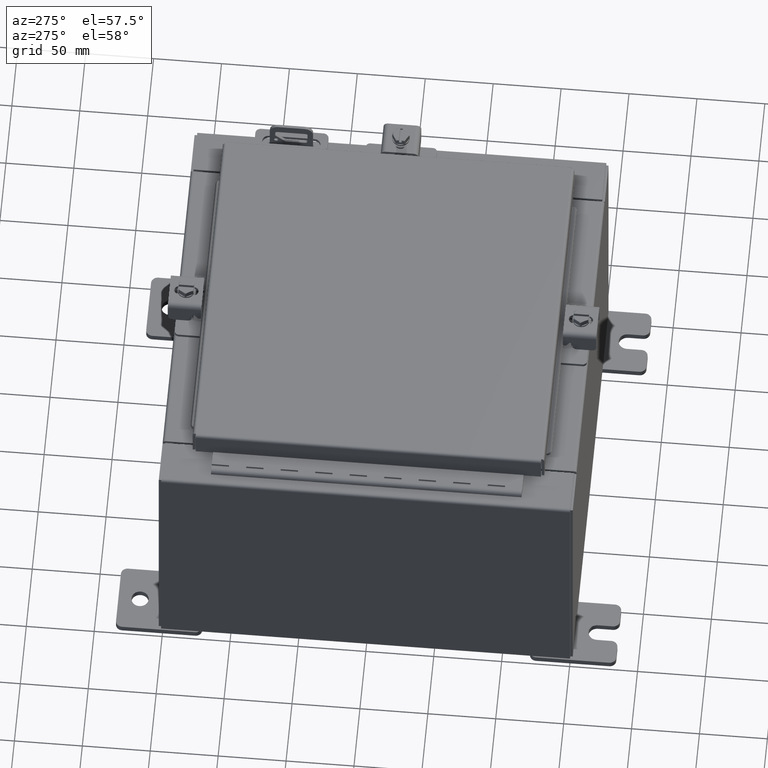
[diagram: clean part render]
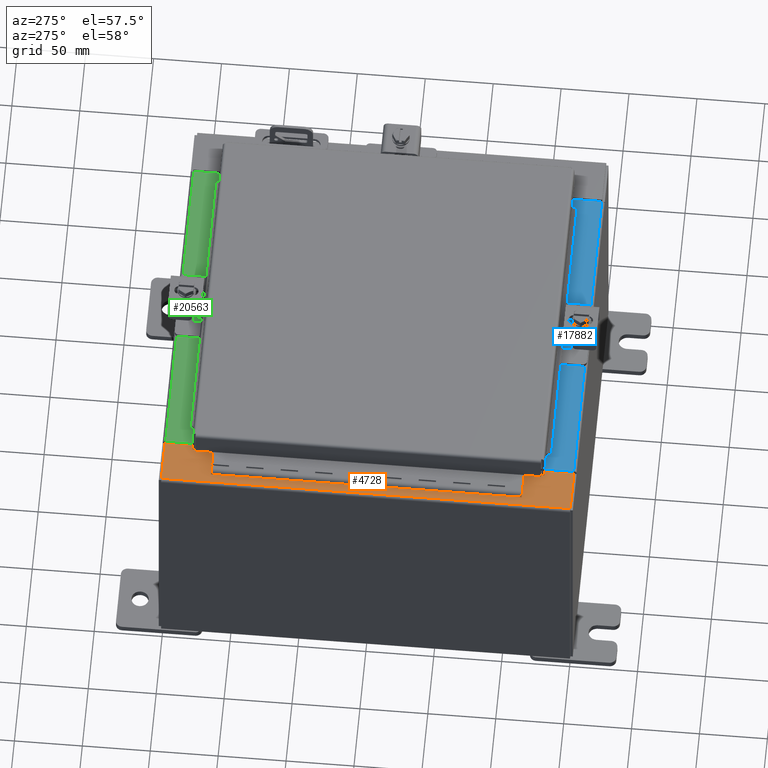
[diagram: same view with three faces highlighted in distinct colors, each labeled with its STEP entity id]
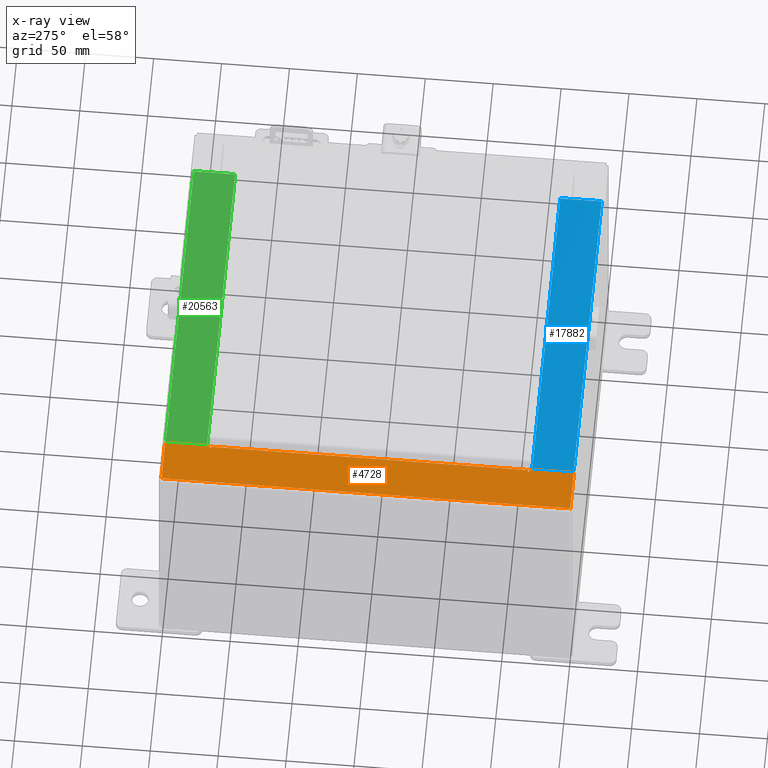
[diagram: x-ray of the same camera — body ghosted, the three highlighted faces saturated]
A machine part, auxiliary view with three faces highlighted in distinct colors.
The next image is the same camera in x-ray (body ghosted, the three faces saturated) — at least one of them is partly hidden behind the body in this view.
Their STEP definitions:

[orange] entity #4728 — the highlighted planar face has unit normal (0, 0, -1).
#111 = VERTEX_POINT ( 'NONE', #12430 ) ;
#426 = DIRECTION ( 'NONE',  ( 7.132762385546378400E-015, 0.0000000000000000000, -1.000000000000000000 ) ) ;
#486 = EDGE_CURVE ( 'NONE', #17754, #9255, #4667, .T. ) ;
#729 = VERTEX_POINT ( 'NONE', #12958 ) ;
#780 = CARTESIAN_POINT ( 'NONE',  ( -4.699700000000026600, 0.0000000000000000000, 7.925300000000008900 ) ) ;
#897 = CARTESIAN_POINT ( 'NONE',  ( -5.912300000000026800, 5.925299999999999100, 7.925300000000000000 ) ) ;
#960 = LINE ( 'NONE', #21531, #19613 ) ;
#1074 = CARTESIAN_POINT ( 'NONE',  ( -4.750050000000027400, 4.631100000000000000, 7.925300000000008900 ) ) ;
#1168 = VECTOR ( 'NONE', #9827, 39.37007874015748100 ) ;
#1319 = EDGE_CURVE ( 'NONE', #6226, #9882, #22427, .T. ) ;
#1437 = EDGE_CURVE ( 'NONE', #111, #3141, #960, .T. ) ;
#2150 = VERTEX_POINT ( 'NONE', #17970 ) ;
#2498 = ORIENTED_EDGE ( 'NONE', *, *, #6120, .F. ) ;
#3141 = VERTEX_POINT ( 'NONE', #14620 ) ;
#3302 = DIRECTION ( 'NONE',  ( -7.132762385546378400E-015, -0.0000000000000000000, 1.000000000000000000 ) ) ;
#3447 = DIRECTION ( 'NONE',  ( -1.000000000000000000, -1.085143195099989400E-014, 0.0000000000000000000 ) ) ;
#3880 = LINE ( 'NONE', #15786, #22511 ) ;
#4068 = VECTOR ( 'NONE', #11046, 39.37007874015748100 ) ;
#4095 = VECTOR ( 'NONE', #11628, 39.37007874015748100 ) ;
#4599 = VERTEX_POINT ( 'NONE', #16338 ) ;
#4667 = LINE ( 'NONE', #780, #4095 ) ;
#4728 = ADVANCED_FACE ( 'NONE', ( #10622 ), #22068, .F. ) ;
#4763 = VECTOR ( 'NONE', #7005, 39.37007874015748100 ) ;
#5354 = LINE ( 'NONE', #19209, #10161 ) ;
#5382 = CARTESIAN_POINT ( 'NONE',  ( -5.912300000000026800, 5.925299999999999100, 7.925300000000000000 ) ) ;
#6060 = CARTESIAN_POINT ( 'NONE',  ( -4.699700000000026600, -5.925299999999995600, 7.925300000000008900 ) ) ;
#6120 = EDGE_CURVE ( 'NONE', #3141, #729, #22992, .T. ) ;
#6212 = CARTESIAN_POINT ( 'NONE',  ( -4.699700000000026600, 4.631100000000000900, 7.925300000000008900 ) ) ;
#6226 = VERTEX_POINT ( 'NONE', #1074 ) ;
#6865 = DIRECTION ( 'NONE',  ( -7.132762385546378400E-015, -0.0000000000000000000, 1.000000000000000000 ) ) ;
#7005 = DIRECTION ( 'NONE',  ( 0.0000000000000000000, 1.000000000000000000, 0.0000000000000000000 ) ) ;
#7134 = LINE ( 'NONE', #18351, #11953 ) ;
#7411 = EDGE_CURVE ( 'NONE', #9882, #19232, #5354, .T. ) ;
#8336 = ORIENTED_EDGE ( 'NONE', *, *, #1437, .F. ) ;
#8735 = EDGE_CURVE ( 'NONE', #4599, #17754, #3880, .T. ) ;
#8828 = EDGE_CURVE ( 'NONE', #20661, #6226, #12377, .T. ) ;
#8885 = ORIENTED_EDGE ( 'NONE', *, *, #8735, .T. ) ;
#9255 = VERTEX_POINT ( 'NONE', #16734 ) ;
#9827 = DIRECTION ( 'NONE',  ( -0.0000000000000000000, -1.000000000000000000, -0.0000000000000000000 ) ) ;
#9882 = VERTEX_POINT ( 'NONE', #11722 ) ;
#10161 = VECTOR ( 'NONE', #10186, 39.37007874015748100 ) ;
#10186 = DIRECTION ( 'NONE',  ( 1.000000000000000000, 0.0000000000000000000, 0.0000000000000000000 ) ) ;
#10622 = FACE_OUTER_BOUND ( 'NONE', #20949, .T. ) ;
#10780 = LINE ( 'NONE', #22465, #1168 ) ;
#11035 = ORIENTED_EDGE ( 'NONE', *, *, #7411, .F. ) ;
#11046 = DIRECTION ( 'NONE',  ( 1.000000000000000000, -1.085143195099989400E-014, 0.0000000000000000000 ) ) ;
#11085 = DIRECTION ( 'NONE',  ( -1.000000000000000000, 0.0000000000000000000, -7.132762385546378400E-015 ) ) ;
#11124 = CARTESIAN_POINT ( 'NONE',  ( -4.750050000000027400, -4.631099999999996400, 7.925300000000008900 ) ) ;
#11316 = AXIS2_PLACEMENT_3D ( 'NONE', #14152, #3302, #15964 ) ;
#11628 = DIRECTION ( 'NONE',  ( 0.0000000000000000000, 1.000000000000000000, 0.0000000000000000000 ) ) ;
#11722 = CARTESIAN_POINT ( 'NONE',  ( -4.750050000000027400, 4.593750000000000000, 7.925300000000008900 ) ) ;
#11953 = VECTOR ( 'NONE', #11085, 39.37007874015748100 ) ;
#12360 = AXIS2_PLACEMENT_3D ( 'NONE', #18458, #426, #13088 ) ;
#12377 = LINE ( 'NONE', #14272, #12934 ) ;
#12430 = CARTESIAN_POINT ( 'NONE',  ( -4.712700000000027400, -4.593749999999996400, 7.925300000000008900 ) ) ;
#12561 = CARTESIAN_POINT ( 'NONE',  ( -4.712700000000027400, 4.593750000000000000, 7.925300000000008900 ) ) ;
#12934 = VECTOR ( 'NONE', #3447, 39.37007874015748100 ) ;
#12945 = ORIENTED_EDGE ( 'NONE', *, *, #16908, .T. ) ;
#12958 = CARTESIAN_POINT ( 'NONE',  ( -4.750050000000027400, -4.631099999999996400, 7.925300000000008900 ) ) ;
#12996 = AXIS2_PLACEMENT_3D ( 'NONE', #17697, #6865, #19506 ) ;
#13088 = DIRECTION ( 'NONE',  ( -1.000000000000000000, 0.0000000000000000000, -7.132762385546378400E-015 ) ) ;
#13661 = VERTEX_POINT ( 'NONE', #5382 ) ;
#13692 = LINE ( 'NONE', #11124, #4068 ) ;
#14047 = DIRECTION ( 'NONE',  ( 1.000000000000000000, 8.915952981932975000E-016, 7.132762385546378400E-015 ) ) ;
#14152 = CARTESIAN_POINT ( 'NONE',  ( -4.750050000000027400, -4.612424999999996400, 7.925300000000008900 ) ) ;
#14272 = CARTESIAN_POINT ( 'NONE',  ( -4.699700000000026600, 4.631100000000000000, 7.925300000000008900 ) ) ;
#14378 = DIRECTION ( 'NONE',  ( -1.000000000000000000, 0.0000000000000000000, 0.0000000000000000000 ) ) ;
#14404 = LINE ( 'NONE', #19640, #4763 ) ;
#14452 = EDGE_CURVE ( 'NONE', #729, #9255, #13692, .T. ) ;
#14620 = CARTESIAN_POINT ( 'NONE',  ( -4.750050000000027400, -4.593749999999996400, 7.925300000000008900 ) ) ;
#15303 = ORIENTED_EDGE ( 'NONE', *, *, #22750, .T. ) ;
#15369 = DIRECTION ( 'NONE',  ( -0.0000000000000000000, 1.000000000000000000, -0.0000000000000000000 ) ) ;
#15786 = CARTESIAN_POINT ( 'NONE',  ( -5.150712576976316900E-014, -5.925299999999992900, 7.925300000000042600 ) ) ;
#15964 = DIRECTION ( 'NONE',  ( 1.000000000000000000, 0.0000000000000000000, 0.0000000000000000000 ) ) ;
#16338 = CARTESIAN_POINT ( 'NONE',  ( -5.912300000000026800, -5.925299999999995600, 7.925300000000000000 ) ) ;
#16432 = ORIENTED_EDGE ( 'NONE', *, *, #17817, .F. ) ;
#16584 = ORIENTED_EDGE ( 'NONE', *, *, #1319, .F. ) ;
#16734 = CARTESIAN_POINT ( 'NONE',  ( -4.699700000000026600, -4.631099999999995600, 7.925300000000008900 ) ) ;
#16908 = EDGE_CURVE ( 'NONE', #2150, #13661, #7134, .T. ) ;
#16922 = LINE ( 'NONE', #897, #21142 ) ;
#17097 = ORIENTED_EDGE ( 'NONE', *, *, #19487, .F. ) ;
#17697 = CARTESIAN_POINT ( 'NONE',  ( -4.750050000000027400, 4.612425000000000000, 7.925300000000008900 ) ) ;
#17754 = VERTEX_POINT ( 'NONE', #6060 ) ;
#17817 = EDGE_CURVE ( 'NONE', #19232, #111, #10780, .T. ) ;
#17970 = CARTESIAN_POINT ( 'NONE',  ( -4.699700000000026600, 5.925299999999999100, 7.925300000000008900 ) ) ;
#18351 = CARTESIAN_POINT ( 'NONE',  ( -5.679009539024888300E-014, 5.925299999999999100, 7.925300000000042600 ) ) ;
#18458 = CARTESIAN_POINT ( 'NONE',  ( -5.679009539024888300E-014, 0.0000000000000000000, 7.925300000000042600 ) ) ;
#19209 = CARTESIAN_POINT ( 'NONE',  ( -4.750050000000027400, 4.593750000000000000, 7.925300000000008900 ) ) ;
#19232 = VERTEX_POINT ( 'NONE', #12561 ) ;
#19330 = ORIENTED_EDGE ( 'NONE', *, *, #14452, .F. ) ;
#19487 = EDGE_CURVE ( 'NONE', #4599, #13661, #16922, .T. ) ;
#19506 = DIRECTION ( 'NONE',  ( 1.000000000000000000, 0.0000000000000000000, 0.0000000000000000000 ) ) ;
#19613 = VECTOR ( 'NONE', #14378, 39.37007874015748100 ) ;
#19640 = CARTESIAN_POINT ( 'NONE',  ( -4.699700000000026600, 0.0000000000000000000, 7.925300000000008900 ) ) ;
#20661 = VERTEX_POINT ( 'NONE', #6212 ) ;
#20949 = EDGE_LOOP ( 'NONE', ( #20958, #15303, #12945, #17097, #8885, #22212, #19330, #2498, #8336, #16432, #11035, #16584 ) ) ;
#20958 = ORIENTED_EDGE ( 'NONE', *, *, #8828, .F. ) ;
#21142 = VECTOR ( 'NONE', #15369, 39.37007874015748100 ) ;
#21531 = CARTESIAN_POINT ( 'NONE',  ( -4.712700000000027400, -4.593749999999996400, 7.925300000000008900 ) ) ;
#22068 = PLANE ( 'NONE',  #12360 ) ;
#22212 = ORIENTED_EDGE ( 'NONE', *, *, #486, .T. ) ;
#22427 = CIRCLE ( 'NONE', #12996, 0.01867500000000003900 ) ;
#22465 = CARTESIAN_POINT ( 'NONE',  ( -4.712700000000027400, 4.593750000000000900, 7.925300000000008900 ) ) ;
#22511 = VECTOR ( 'NONE', #14047, 39.37007874015748100 ) ;
#22750 = EDGE_CURVE ( 'NONE', #20661, #2150, #14404, .T. ) ;
#22992 = CIRCLE ( 'NONE', #11316, 0.01867500000000003900 ) ;

[blue] entity #17882 — the highlighted planar face has unit normal (-0, -0, 1).
#171 = ORIENTED_EDGE ( 'NONE', *, *, #6327, .F. ) ;
#262 = ORIENTED_EDGE ( 'NONE', *, *, #3251, .F. ) ;
#513 = LINE ( 'NONE', #9438, #19193 ) ;
#1082 = DIRECTION ( 'NONE',  ( -7.527024686015787100E-016, -1.000000000000000000, 4.036106887760111300E-015 ) ) ;
#2385 = EDGE_LOOP ( 'NONE', ( #13311, #171, #262, #15617 ) ) ;
#2520 = CARTESIAN_POINT ( 'NONE',  ( -4.637199999999990200, -0.07470000000000015500, 3.999999999999999600 ) ) ;
#3177 = VERTEX_POINT ( 'NONE', #11067 ) ;
#3196 = CARTESIAN_POINT ( 'NONE',  ( 4.637200000000010600, -1.287299999999999700, 4.000000000000004400 ) ) ;
#3251 = EDGE_CURVE ( 'NONE', #19548, #22927, #513, .T. ) ;
#4339 = DIRECTION ( 'NONE',  ( 7.527024686015789100E-016, 1.000000000000000000, -4.036106887760111300E-015 ) ) ;
#4823 = FACE_OUTER_BOUND ( 'NONE', #2385, .T. ) ;
#5510 = AXIS2_PLACEMENT_3D ( 'NONE', #6441, #11927, #1082 ) ;
#5635 = CARTESIAN_POINT ( 'NONE',  ( 4.637200000000010600, -1.287299999999999700, 4.000000000000004400 ) ) ;
#6327 = EDGE_CURVE ( 'NONE', #22927, #3177, #14819, .T. ) ;
#6441 = CARTESIAN_POINT ( 'NONE',  ( 9.325873408127909600E-015, 1.420560956705417000E-014, 4.000000000000000900 ) ) ;
#6988 = VECTOR ( 'NONE', #8900, 39.37007874015748100 ) ;
#8485 = VECTOR ( 'NONE', #4339, 39.37007874015748100 ) ;
#8900 = DIRECTION ( 'NONE',  ( -1.000000000000000000, -7.527024686015870000E-016, -2.331468351712828700E-015 ) ) ;
#9398 = VECTOR ( 'NONE', #23009, 39.37007874015748100 ) ;
#9438 = CARTESIAN_POINT ( 'NONE',  ( 4.637200000000010600, -1.300299999999999800, 4.000000000000004400 ) ) ;
#11067 = CARTESIAN_POINT ( 'NONE',  ( -4.637199999999990200, -1.287299999999998600, 4.000000000000003600 ) ) ;
#11224 = LINE ( 'NONE', #19739, #6988 ) ;
#11927 = DIRECTION ( 'NONE',  ( 2.331468351712829500E-015, 4.036106887760109700E-015, 1.000000000000000000 ) ) ;
#13311 = ORIENTED_EDGE ( 'NONE', *, *, #21882, .F. ) ;
#14819 = LINE ( 'NONE', #3196, #9398 ) ;
#15617 = ORIENTED_EDGE ( 'NONE', *, *, #20272, .T. ) ;
#15784 = CARTESIAN_POINT ( 'NONE',  ( -4.637199999999990200, -0.08770000000000026400, 3.999999999999999600 ) ) ;
#17882 = ADVANCED_FACE ( 'NONE', ( #4823 ), #22693, .T. ) ;
#17979 = VERTEX_POINT ( 'NONE', #15784 ) ;
#19193 = VECTOR ( 'NONE', #22099, 39.37007874015748100 ) ;
#19548 = VERTEX_POINT ( 'NONE', #22662 ) ;
#19739 = CARTESIAN_POINT ( 'NONE',  ( 9.259861396105841300E-015, -0.08770000000000026400, 4.000000000000000900 ) ) ;
#20272 = EDGE_CURVE ( 'NONE', #19548, #17979, #11224, .T. ) ;
#21882 = EDGE_CURVE ( 'NONE', #3177, #17979, #22891, .T. ) ;
#22099 = DIRECTION ( 'NONE',  ( -7.527024686015789100E-016, -1.000000000000000000, 4.036106887760111300E-015 ) ) ;
#22662 = CARTESIAN_POINT ( 'NONE',  ( 4.637200000000010600, -0.08770000000000026400, 4.000000000000000900 ) ) ;
#22693 = PLANE ( 'NONE',  #5510 ) ;
#22891 = LINE ( 'NONE', #2520, #8485 ) ;
#22927 = VERTEX_POINT ( 'NONE', #5635 ) ;
#23009 = DIRECTION ( 'NONE',  ( -1.000000000000000000, -7.527024686015870000E-016, -2.331468351712828700E-015 ) ) ;

[green] entity #20563 — the highlighted planar face has unit normal (0, 0, 1).
#174 = CARTESIAN_POINT ( 'NONE',  ( 4.637200000000002700, -0.08770000000000026400, 3.999999999999998700 ) ) ;
#291 = VERTEX_POINT ( 'NONE', #9147 ) ;
#876 = DIRECTION ( 'NONE',  ( -1.000000000000000000, 0.0000000000000000000, 0.0000000000000000000 ) ) ;
#2045 = VECTOR ( 'NONE', #7687, 39.37007874015748100 ) ;
#2335 = EDGE_CURVE ( 'NONE', #16266, #12936, #21261, .T. ) ;
#3202 = CARTESIAN_POINT ( 'NONE',  ( -4.637199999999998200, -0.07470000000000015500, 3.999999999999998700 ) ) ;
#3885 = EDGE_CURVE ( 'NONE', #12936, #291, #22233, .T. ) ;
#4244 = DIRECTION ( 'NONE',  ( 0.0000000000000000000, 3.566381192773190000E-015, 1.000000000000000000 ) ) ;
#4552 = ORIENTED_EDGE ( 'NONE', *, *, #3885, .F. ) ;
#5243 = DIRECTION ( 'NONE',  ( -1.000000000000000000, 0.0000000000000000000, 0.0000000000000000000 ) ) ;
#5991 = PLANE ( 'NONE',  #11549 ) ;
#7299 = EDGE_CURVE ( 'NONE', #16266, #10852, #21453, .T. ) ;
#7687 = DIRECTION ( 'NONE',  ( -0.0000000000000000000, -1.000000000000000000, 3.566381192773190000E-015 ) ) ;
#9147 = CARTESIAN_POINT ( 'NONE',  ( -4.637199999999998200, -1.287299999999999200, 4.000000000000003600 ) ) ;
#9265 = ORIENTED_EDGE ( 'NONE', *, *, #7299, .T. ) ;
#10852 = VERTEX_POINT ( 'NONE', #16085 ) ;
#10895 = EDGE_LOOP ( 'NONE', ( #15958, #4552, #19221, #9265 ) ) ;
#11549 = AXIS2_PLACEMENT_3D ( 'NONE', #15083, #4244, #16894 ) ;
#11777 = CARTESIAN_POINT ( 'NONE',  ( 4.637200000000002700, -1.287300000000000300, 4.000000000000003600 ) ) ;
#12936 = VERTEX_POINT ( 'NONE', #11777 ) ;
#13220 = VECTOR ( 'NONE', #5243, 39.37007874015748100 ) ;
#13974 = DIRECTION ( 'NONE',  ( -0.0000000000000000000, 1.000000000000000000, -3.566381192773190000E-015 ) ) ;
#15083 = CARTESIAN_POINT ( 'NONE',  ( 0.0000000000000000000, 1.420560956705417000E-014, 3.999999999999998700 ) ) ;
#15958 = ORIENTED_EDGE ( 'NONE', *, *, #17997, .F. ) ;
#16085 = CARTESIAN_POINT ( 'NONE',  ( -4.637199999999998200, -0.08770000000000026400, 3.999999999999998700 ) ) ;
#16266 = VERTEX_POINT ( 'NONE', #174 ) ;
#16687 = VECTOR ( 'NONE', #876, 39.37007874015748100 ) ;
#16894 = DIRECTION ( 'NONE',  ( 0.0000000000000000000, -1.000000000000000000, 3.566381192773190000E-015 ) ) ;
#16994 = LINE ( 'NONE', #3202, #21767 ) ;
#17916 = CARTESIAN_POINT ( 'NONE',  ( 4.637200000000002700, -1.287300000000000300, 4.000000000000003600 ) ) ;
#17997 = EDGE_CURVE ( 'NONE', #291, #10852, #16994, .T. ) ;
#19221 = ORIENTED_EDGE ( 'NONE', *, *, #2335, .F. ) ;
#19414 = FACE_OUTER_BOUND ( 'NONE', #10895, .T. ) ;
#20326 = CARTESIAN_POINT ( 'NONE',  ( 4.637200000000002700, -1.300299999999999800, 4.000000000000003600 ) ) ;
#20563 = ADVANCED_FACE ( 'NONE', ( #19414 ), #5991, .T. ) ;
#20710 = CARTESIAN_POINT ( 'NONE',  ( 0.0000000000000000000, -0.08770000000000026400, 4.000000000000000900 ) ) ;
#21261 = LINE ( 'NONE', #20326, #2045 ) ;
#21453 = LINE ( 'NONE', #20710, #16687 ) ;
#21767 = VECTOR ( 'NONE', #13974, 39.37007874015748100 ) ;
#22233 = LINE ( 'NONE', #17916, #13220 ) ;